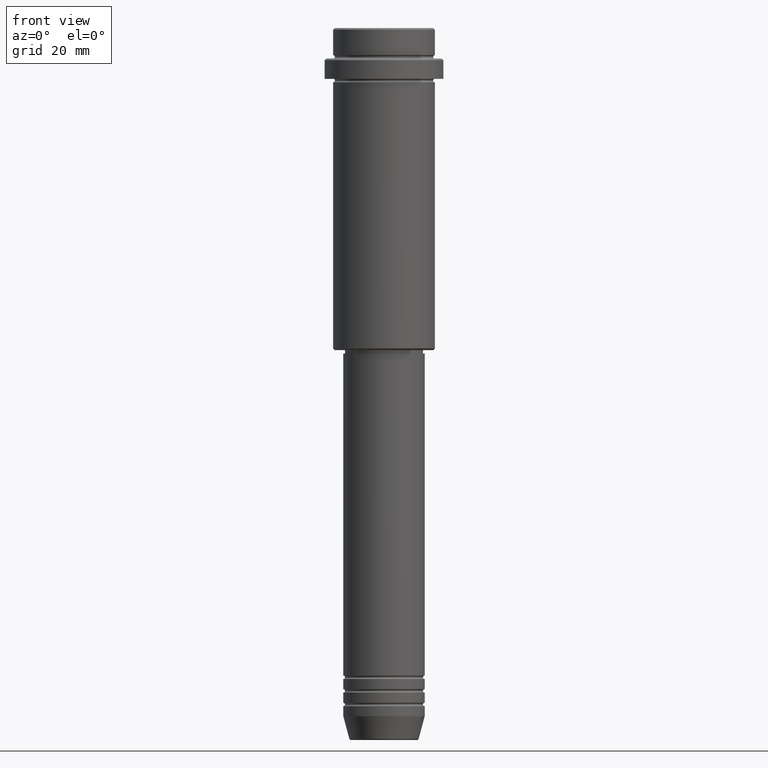
[diagram: clean part render]
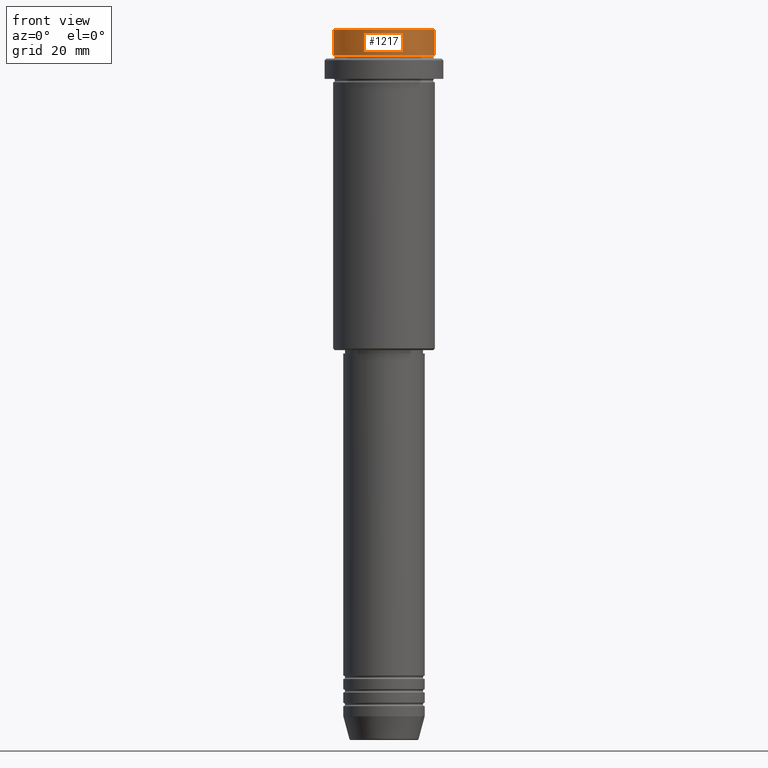
[diagram: same view with one face highlighted and labeled with its STEP entity id]
A machine part, front view. The second image highlights one B-rep face of the part: STEP entity #1217.
In plain terms, the highlighted cylindrical surface (partial cylindrical patch) has radius 15 mm, axis along (-0, -0, 1).
Its self-contained STEP definition (entity closure, byte-faithful):
#2 = AXIS2_PLACEMENT_3D ( 'NONE', #957, #1297, #308 ) ;
#18 = EDGE_LOOP ( 'NONE', ( #707, #1068, #1029, #274 ) ) ;
#75 = CARTESIAN_POINT ( 'NONE',  ( -15.00000000000000000, 1.836970198721029589E-15, 0.000000000000000000 ) ) ;
#82 = CARTESIAN_POINT ( 'NONE',  ( -15.00000000000000000, 1.836970198721029589E-15, -7.999999999999998224 ) ) ;
#227 = DIRECTION ( 'NONE',  ( 0.000000000000000000, 0.000000000000000000, -1.000000000000000000 ) ) ;
#274 = ORIENTED_EDGE ( 'NONE', *, *, #421, .T. ) ;
#308 = DIRECTION ( 'NONE',  ( 1.000000000000000000, 0.000000000000000000, 0.000000000000000000 ) ) ;
#316 = LINE ( 'NONE', #1390, #736 ) ;
#417 = FACE_OUTER_BOUND ( 'NONE', #18, .T. ) ;
#421 = EDGE_CURVE ( 'NONE', #636, #956, #1347, .T. ) ;
#445 = CARTESIAN_POINT ( 'NONE',  ( 0.000000000000000000, 0.000000000000000000, -0.5000000000000108802 ) ) ;
#463 = VERTEX_POINT ( 'NONE', #1342 ) ;
#513 = CARTESIAN_POINT ( 'NONE',  ( 0.000000000000000000, 0.000000000000000000, 0.000000000000000000 ) ) ;
#623 = CIRCLE ( 'NONE', #2, 15.00000000000000000 ) ;
#636 = VERTEX_POINT ( 'NONE', #1343 ) ;
#692 = VERTEX_POINT ( 'NONE', #82 ) ;
#707 = ORIENTED_EDGE ( 'NONE', *, *, #793, .F. ) ;
#736 = VECTOR ( 'NONE', #975, 1000.000000000000000 ) ;
#748 = DIRECTION ( 'NONE',  ( 1.000000000000000000, 0.000000000000000000, 0.000000000000000000 ) ) ;
#778 = EDGE_CURVE ( 'NONE', #463, #636, #316, .T. ) ;
#793 = EDGE_CURVE ( 'NONE', #692, #956, #1180, .T. ) ;
#864 = DIRECTION ( 'NONE',  ( -0.000000000000000000, -0.000000000000000000, 1.000000000000000000 ) ) ;
#870 = VECTOR ( 'NONE', #864, 1000.000000000000000 ) ;
#896 = DIRECTION ( 'NONE',  ( 1.000000000000000000, 0.000000000000000000, 0.000000000000000000 ) ) ;
#956 = VERTEX_POINT ( 'NONE', #1014 ) ;
#957 = CARTESIAN_POINT ( 'NONE',  ( 0.000000000000000000, 0.000000000000000000, -7.999999999999998224 ) ) ;
#970 = DIRECTION ( 'NONE',  ( -0.000000000000000000, -0.000000000000000000, 1.000000000000000000 ) ) ;
#975 = DIRECTION ( 'NONE',  ( -0.000000000000000000, -0.000000000000000000, 1.000000000000000000 ) ) ;
#984 = AXIS2_PLACEMENT_3D ( 'NONE', #513, #970, #748 ) ;
#1014 = CARTESIAN_POINT ( 'NONE',  ( -15.00000000000000000, 1.836970198721029589E-15, -0.5000000000000108802 ) ) ;
#1029 = ORIENTED_EDGE ( 'NONE', *, *, #778, .T. ) ;
#1033 = AXIS2_PLACEMENT_3D ( 'NONE', #445, #227, #896 ) ;
#1068 = ORIENTED_EDGE ( 'NONE', *, *, #1133, .T. ) ;
#1133 = EDGE_CURVE ( 'NONE', #692, #463, #623, .T. ) ;
#1180 = LINE ( 'NONE', #75, #870 ) ;
#1217 = ADVANCED_FACE ( 'NONE', ( #417 ), #1401, .T. ) ;
#1297 = DIRECTION ( 'NONE',  ( -0.000000000000000000, -0.000000000000000000, 1.000000000000000000 ) ) ;
#1342 = CARTESIAN_POINT ( 'NONE',  ( 15.00000000000000000, 0.000000000000000000, -7.999999999999998224 ) ) ;
#1343 = CARTESIAN_POINT ( 'NONE',  ( 15.00000000000000000, 0.000000000000000000, -0.5000000000000108802 ) ) ;
#1347 = CIRCLE ( 'NONE', #1033, 15.00000000000000000 ) ;
#1390 = CARTESIAN_POINT ( 'NONE',  ( 15.00000000000000000, 0.000000000000000000, 0.000000000000000000 ) ) ;
#1401 = CYLINDRICAL_SURFACE ( 'NONE', #984, 15.00000000000000000 ) ;